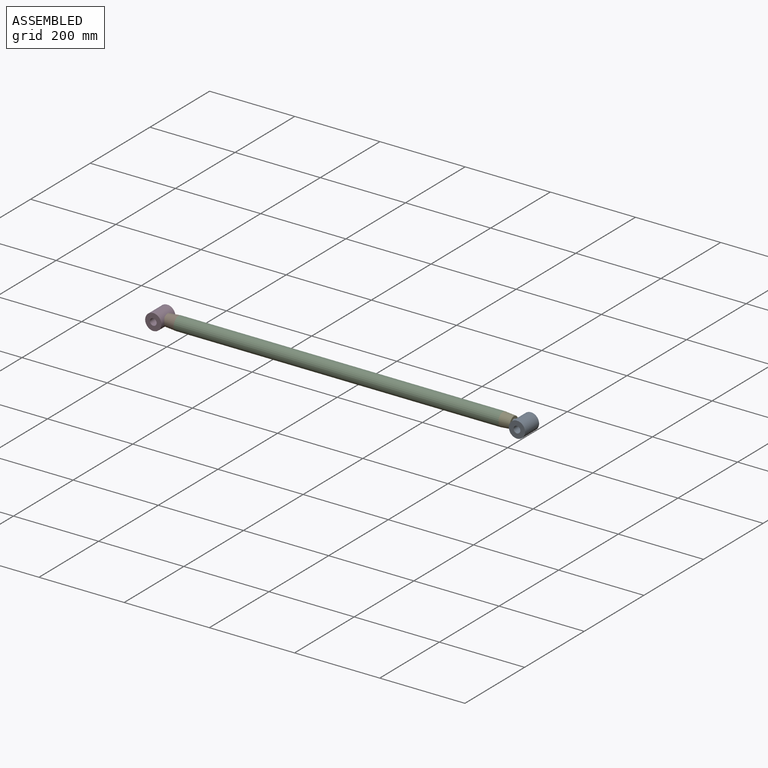
[diagram: assembled view]
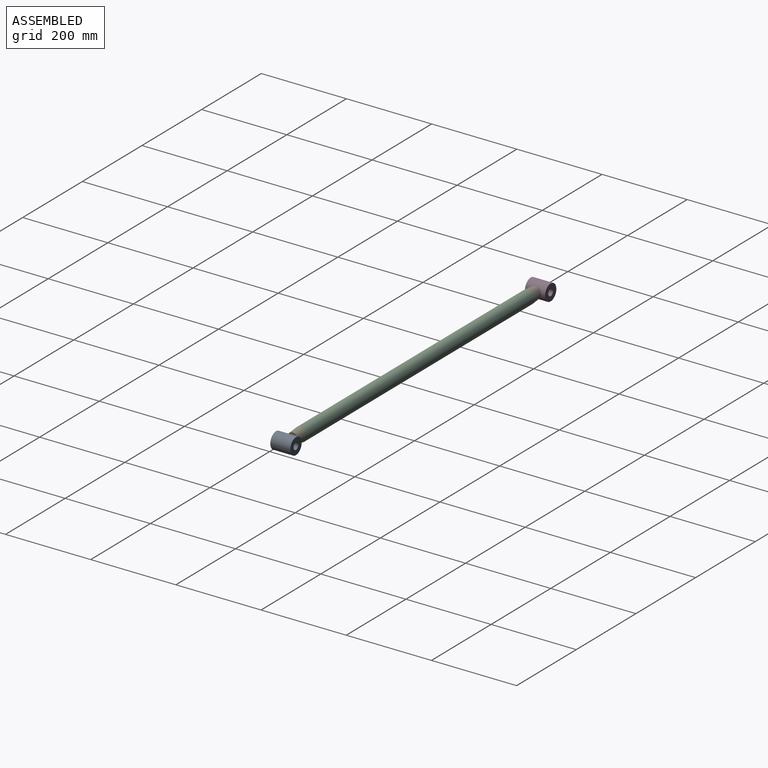
[diagram: assembled view, second angle]
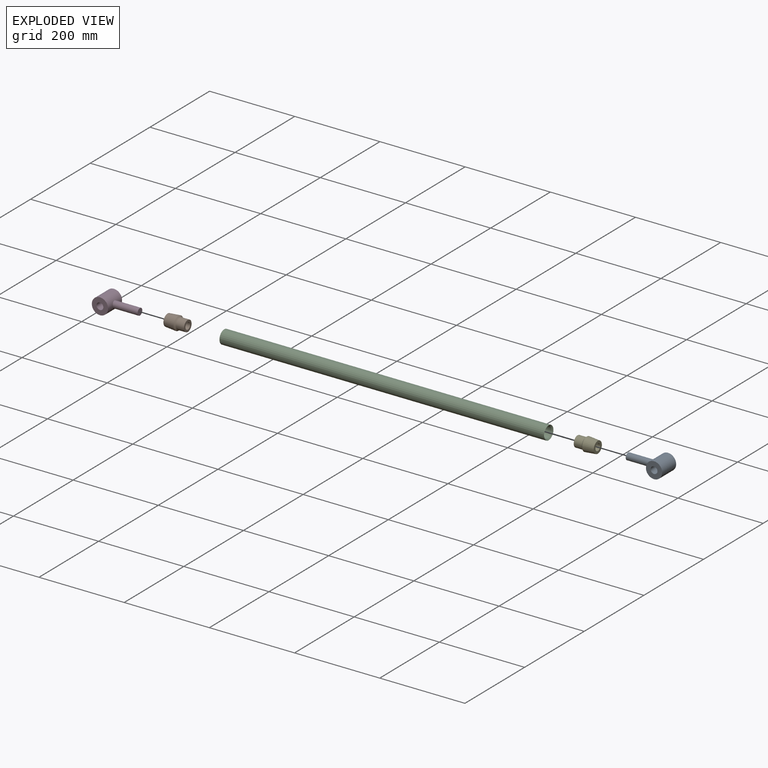
[diagram: exploded view]
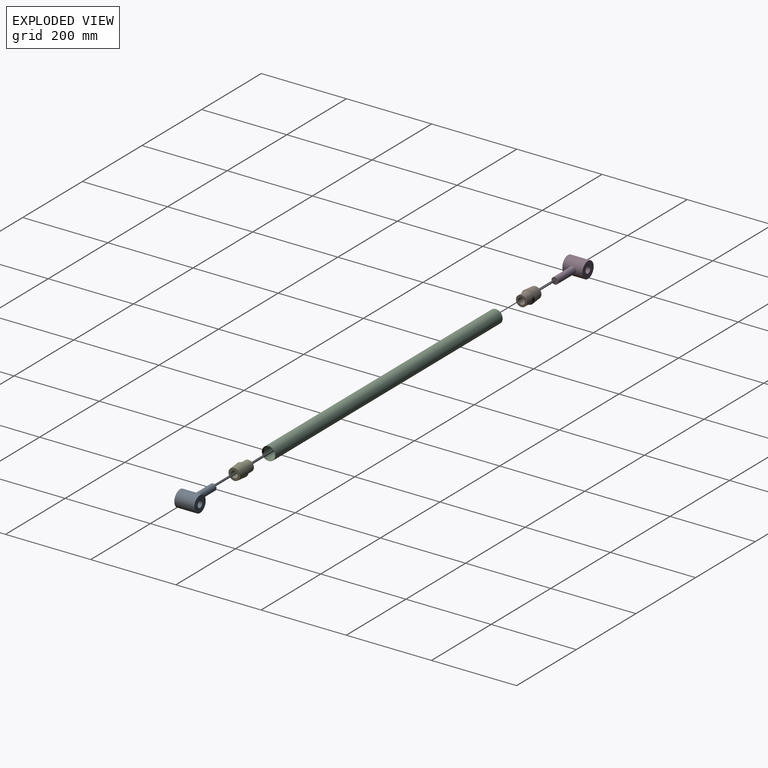
[diagram: exploded view, second angle]
ASSEMBLY  parts=5 mates=4
PART A: 6 faces, bbox 38.1x47x96.5 mm
  f0: cylinder r=7.94mm len=46.99mm, axis (0,1,0), area 2343.5mm2, adj f2,f3
  f1: cylinder r=19.05mm len=46.99mm, axis (0,1,0), area 5422.4mm2, adj f2,f3,f5
  f2: plane 38.1x38.1mm, normal (0,-1,0), area 942.2mm2, adj f0,f1
  f3: plane 38.1x38.1mm, normal (0,1,0), area 942.2mm2, adj f0,f1
  f4: plane 15.88x15.88mm, normal (0,0,1), area 197.9mm2, adj f5
  f5: cylinder r=7.94mm len=60.15mm, axis (0,0,-1), area 2956.2mm2, adj f1,f4
PART B: 6 faces, bbox 47.6x31.8x31.8 mm
  f0: plane 27.43x27.43mm, normal (-1,0,0), area 393.1mm2, adj f1,f5
  f1: cylinder r=7.94mm len=47.63mm, axis (-1,0,0), area 2375.2mm2, adj f0,f2
  f2: plane 25.53x25.53mm, normal (1,0,0), area 313.9mm2, adj f1,f3
  f3: cylinder r=12.76mm len=25.53mm, axis (-1,0,0), area 1527.7mm2, adj f2,f4
  f4: cone r=15.88mm half-angle=48.1deg, axis (-1,0,0), area 376.2mm2, adj f3,f5
  f5: cone r=13.72mm half-angle=4.8deg, axis (1,0,0), area 2405.1mm2, adj f0,f4
PART C: 4 faces, bbox 762x31.8x31.8 mm
  f0: cylinder r=12.83mm len=756.53mm, axis (-1,0,0), area 60971.8mm2, adj f1,f3
  f1: cone r=15.88mm half-angle=48.1deg, axis (1,0,0), area 369.4mm2, adj f0,f2
  f2: cylinder r=15.88mm len=762mm, axis (-1,0,0), area 76006.1mm2, adj f1,f3
  f3: cone r=15.88mm half-angle=48.1deg, axis (-1,0,0), area 369.4mm2, adj f0,f2
PART D: same geometry as A
PART E: same geometry as B
PLACE A rot(axis=(0,-1,0),90deg) t=(607.76,67.37,-87.99)mm
PLACE B t=(-229.2,43.87,-87.99)mm
PLACE C t=(-203.42,43.87,-87.99)mm fixed
PLACE D rot(axis=(0,1,0),90deg) t=(-246.13,67.37,-87.99)mm
PLACE E rot(axis=(0,1,0),180deg) t=(584.36,43.87,-87.99)mm
MATE fastened B.f1 <-> D.f5  axis (-1,0,0) through (-229.2,43.87,-87.99)mm
MATE slider A.f5 <-> E.f1  axis (1,0,0) through (560.55,43.87,-87.99)mm
MATE fastened B.f1 <-> C.f0  axis (-1,0,0) through (-203.42,43.87,-87.99)mm
MATE fastened E.f1 <-> C.f0  axis (1,0,0) through (558.58,43.87,-87.99)mm
